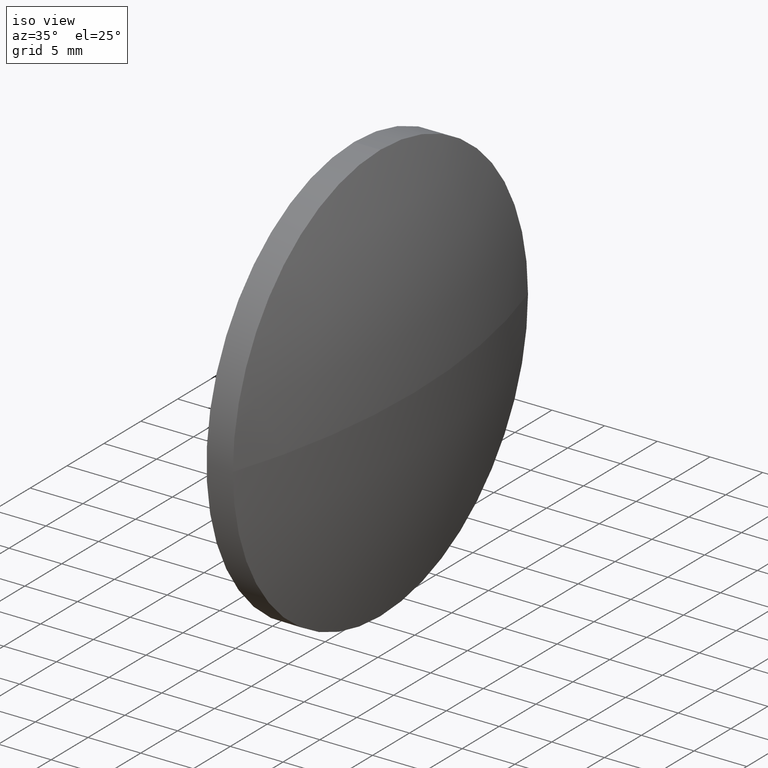
[diagram: clean part render]
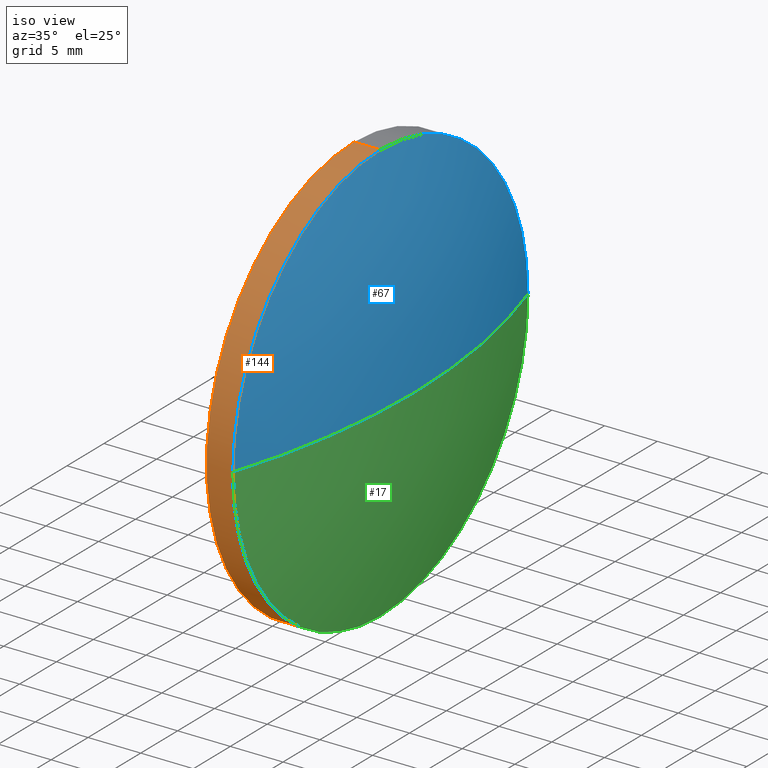
[diagram: same view with three faces highlighted in distinct colors, each labeled with its STEP entity id]
A machine part, iso view with three faces highlighted in distinct colors.
Their STEP definitions:

[orange] entity #144 — the highlighted cylindrical surface (partial cylindrical patch) has radius 20 mm, axis along (-1, -0, -0).
#5 = VECTOR ( 'NONE', #137, 1000.000000000000000 ) ;
#6 = VERTEX_POINT ( 'NONE', #153 ) ;
#9 = DIRECTION ( 'NONE',  ( -1.000000000000000000, -0.0000000000000000000, -0.0000000000000000000 ) ) ;
#15 = ORIENTED_EDGE ( 'NONE', *, *, #185, .F. ) ;
#18 = VECTOR ( 'NONE', #104, 1000.000000000000000 ) ;
#28 = DIRECTION ( 'NONE',  ( 0.0000000000000000000, 0.0000000000000000000, 1.000000000000000000 ) ) ;
#38 = FACE_OUTER_BOUND ( 'NONE', #83, .T. ) ;
#43 = LINE ( 'NONE', #91, #5 ) ;
#46 = EDGE_CURVE ( 'NONE', #169, #164, #158, .T. ) ;
#49 = CARTESIAN_POINT ( 'NONE',  ( 521.8687625904749400, 34.81724702676228800, 19.99999999999999600 ) ) ;
#50 = CIRCLE ( 'NONE', #123, 19.99999999999999600 ) ;
#58 = AXIS2_PLACEMENT_3D ( 'NONE', #108, #182, #170 ) ;
#59 = CARTESIAN_POINT ( 'NONE',  ( 519.3687625904749400, 34.81724702676228800, 0.0000000000000000000 ) ) ;
#65 = CARTESIAN_POINT ( 'NONE',  ( 521.8687625904749400, 34.81724702676228800, 0.0000000000000000000 ) ) ;
#75 = CYLINDRICAL_SURFACE ( 'NONE', #180, 19.99999999999999600 ) ;
#76 = CARTESIAN_POINT ( 'NONE',  ( 515.4038089794889900, 34.81724702676228800, 0.0000000000000000000 ) ) ;
#77 = VERTEX_POINT ( 'NONE', #183 ) ;
#83 = EDGE_LOOP ( 'NONE', ( #121, #135, #162, #141, #15 ) ) ;
#91 = CARTESIAN_POINT ( 'NONE',  ( 515.4038089794889900, 34.81724702676228800, -19.99999999999999600 ) ) ;
#92 = DIRECTION ( 'NONE',  ( -1.000000000000000000, -0.0000000000000000000, -0.0000000000000000000 ) ) ;
#97 = EDGE_CURVE ( 'NONE', #132, #77, #119, .T. ) ;
#104 = DIRECTION ( 'NONE',  ( -1.000000000000000000, -0.0000000000000000000, -0.0000000000000000000 ) ) ;
#108 = CARTESIAN_POINT ( 'NONE',  ( 521.8687625904749400, 34.81724702676228800, 0.0000000000000000000 ) ) ;
#112 = CIRCLE ( 'NONE', #118, 19.99999999999999600 ) ;
#118 = AXIS2_PLACEMENT_3D ( 'NONE', #59, #143, #175 ) ;
#119 = CIRCLE ( 'NONE', #58, 19.99999999999999600 ) ;
#121 = ORIENTED_EDGE ( 'NONE', *, *, #154, .F. ) ;
#123 = AXIS2_PLACEMENT_3D ( 'NONE', #65, #9, #171 ) ;
#128 = EDGE_CURVE ( 'NONE', #77, #169, #50, .T. ) ;
#132 = VERTEX_POINT ( 'NONE', #184 ) ;
#135 = ORIENTED_EDGE ( 'NONE', *, *, #97, .T. ) ;
#137 = DIRECTION ( 'NONE',  ( -1.000000000000000000, -0.0000000000000000000, -0.0000000000000000000 ) ) ;
#141 = ORIENTED_EDGE ( 'NONE', *, *, #46, .T. ) ;
#143 = DIRECTION ( 'NONE',  ( -1.000000000000000000, -0.0000000000000000000, -0.0000000000000000000 ) ) ;
#144 = ADVANCED_FACE ( 'NONE', ( #38 ), #75, .T. ) ;
#148 = CARTESIAN_POINT ( 'NONE',  ( 519.3687625904749400, 34.81724702676228800, 19.99999999999999600 ) ) ;
#153 = CARTESIAN_POINT ( 'NONE',  ( 519.3687625904749400, 34.81724702676228800, -19.99999999999999600 ) ) ;
#154 = EDGE_CURVE ( 'NONE', #132, #6, #43, .T. ) ;
#158 = LINE ( 'NONE', #168, #18 ) ;
#162 = ORIENTED_EDGE ( 'NONE', *, *, #128, .T. ) ;
#164 = VERTEX_POINT ( 'NONE', #148 ) ;
#168 = CARTESIAN_POINT ( 'NONE',  ( 515.4038089794889900, 34.81724702676228800, 19.99999999999999600 ) ) ;
#169 = VERTEX_POINT ( 'NONE', #49 ) ;
#170 = DIRECTION ( 'NONE',  ( 0.0000000000000000000, 0.0000000000000000000, 1.000000000000000000 ) ) ;
#171 = DIRECTION ( 'NONE',  ( 0.0000000000000000000, 0.0000000000000000000, 1.000000000000000000 ) ) ;
#175 = DIRECTION ( 'NONE',  ( 0.0000000000000000000, 0.0000000000000000000, 1.000000000000000000 ) ) ;
#180 = AXIS2_PLACEMENT_3D ( 'NONE', #76, #92, #28 ) ;
#182 = DIRECTION ( 'NONE',  ( -1.000000000000000000, -0.0000000000000000000, -0.0000000000000000000 ) ) ;
#183 = CARTESIAN_POINT ( 'NONE',  ( 521.8687625904749400, 14.81724702676230100, -2.449293598294699800E-015 ) ) ;
#184 = CARTESIAN_POINT ( 'NONE',  ( 521.8687625904749400, 34.81724702676228800, -19.99999999999999600 ) ) ;
#185 = EDGE_CURVE ( 'NONE', #6, #164, #112, .T. ) ;

[blue] entity #67 — the highlighted spherical surface has radius 64.4831 mm.
#3 = VERTEX_POINT ( 'NONE', #56 ) ;
#7 = AXIS2_PLACEMENT_3D ( 'NONE', #27, #105, #63 ) ;
#9 = DIRECTION ( 'NONE',  ( -1.000000000000000000, -0.0000000000000000000, -0.0000000000000000000 ) ) ;
#11 = CARTESIAN_POINT ( 'NONE',  ( 460.5656808294688700, 34.81724702676224600, 0.0000000000000000000 ) ) ;
#27 = CARTESIAN_POINT ( 'NONE',  ( 460.5656808294688700, 34.81724702676224600, 0.0000000000000000000 ) ) ;
#34 = DIRECTION ( 'NONE',  ( -0.0000000000000000000, 0.0000000000000000000, 1.000000000000000000 ) ) ;
#35 = AXIS2_PLACEMENT_3D ( 'NONE', #36, #179, #78 ) ;
#36 = CARTESIAN_POINT ( 'NONE',  ( 521.8687625904749400, 34.81724702676228800, 0.0000000000000000000 ) ) ;
#49 = CARTESIAN_POINT ( 'NONE',  ( 521.8687625904749400, 34.81724702676228800, 19.99999999999999600 ) ) ;
#50 = CIRCLE ( 'NONE', #123, 19.99999999999999600 ) ;
#54 = EDGE_LOOP ( 'NONE', ( #159, #96, #117, #160 ) ) ;
#56 = CARTESIAN_POINT ( 'NONE',  ( 521.8687625904749400, 54.81724702676223900, 0.0000000000000000000 ) ) ;
#57 = CIRCLE ( 'NONE', #61, 64.48308176100611900 ) ;
#61 = AXIS2_PLACEMENT_3D ( 'NONE', #146, #90, #147 ) ;
#63 = DIRECTION ( 'NONE',  ( 0.0000000000000000000, 1.000000000000000000, 0.0000000000000000000 ) ) ;
#64 = AXIS2_PLACEMENT_3D ( 'NONE', #11, #34, #150 ) ;
#65 = CARTESIAN_POINT ( 'NONE',  ( 521.8687625904749400, 34.81724702676228800, 0.0000000000000000000 ) ) ;
#67 = ADVANCED_FACE ( 'NONE', ( #126 ), #161, .T. ) ;
#74 = EDGE_CURVE ( 'NONE', #169, #3, #86, .T. ) ;
#77 = VERTEX_POINT ( 'NONE', #183 ) ;
#78 = DIRECTION ( 'NONE',  ( 0.0000000000000000000, 0.0000000000000000000, 1.000000000000000000 ) ) ;
#82 = CIRCLE ( 'NONE', #64, 64.48308176100609000 ) ;
#86 = CIRCLE ( 'NONE', #35, 19.99999999999999600 ) ;
#90 = DIRECTION ( 'NONE',  ( 0.0000000000000000000, 1.224646799147353200E-016, -1.000000000000000000 ) ) ;
#93 = VERTEX_POINT ( 'NONE', #155 ) ;
#96 = ORIENTED_EDGE ( 'NONE', *, *, #110, .T. ) ;
#105 = DIRECTION ( 'NONE',  ( -0.0000000000000000000, 0.0000000000000000000, -1.000000000000000000 ) ) ;
#110 = EDGE_CURVE ( 'NONE', #93, #3, #82, .T. ) ;
#117 = ORIENTED_EDGE ( 'NONE', *, *, #74, .F. ) ;
#123 = AXIS2_PLACEMENT_3D ( 'NONE', #65, #9, #171 ) ;
#126 = FACE_OUTER_BOUND ( 'NONE', #54, .T. ) ;
#128 = EDGE_CURVE ( 'NONE', #77, #169, #50, .T. ) ;
#146 = CARTESIAN_POINT ( 'NONE',  ( 460.5656808294688700, 34.81724702676224600, 0.0000000000000000000 ) ) ;
#147 = DIRECTION ( 'NONE',  ( 0.0000000000000000000, 1.000000000000000000, 1.224646799147353200E-016 ) ) ;
#150 = DIRECTION ( 'NONE',  ( 1.000000000000000000, 0.0000000000000000000, 0.0000000000000000000 ) ) ;
#155 = CARTESIAN_POINT ( 'NONE',  ( 525.0487625904748900, 34.81724702676225300, 0.0000000000000000000 ) ) ;
#159 = ORIENTED_EDGE ( 'NONE', *, *, #174, .F. ) ;
#160 = ORIENTED_EDGE ( 'NONE', *, *, #128, .F. ) ;
#161 = SPHERICAL_SURFACE ( 'NONE', #7, 64.48308176100611900 ) ;
#169 = VERTEX_POINT ( 'NONE', #49 ) ;
#171 = DIRECTION ( 'NONE',  ( 0.0000000000000000000, 0.0000000000000000000, 1.000000000000000000 ) ) ;
#174 = EDGE_CURVE ( 'NONE', #93, #77, #57, .T. ) ;
#179 = DIRECTION ( 'NONE',  ( -1.000000000000000000, -0.0000000000000000000, -0.0000000000000000000 ) ) ;
#183 = CARTESIAN_POINT ( 'NONE',  ( 521.8687625904749400, 14.81724702676230100, -2.449293598294699800E-015 ) ) ;

[green] entity #17 — the highlighted spherical surface has radius 64.4831 mm.
#3 = VERTEX_POINT ( 'NONE', #56 ) ;
#11 = CARTESIAN_POINT ( 'NONE',  ( 460.5656808294688700, 34.81724702676224600, 0.0000000000000000000 ) ) ;
#17 = ADVANCED_FACE ( 'NONE', ( #23 ), #172, .T. ) ;
#22 = DIRECTION ( 'NONE',  ( -0.0000000000000000000, 0.0000000000000000000, -1.000000000000000000 ) ) ;
#23 = FACE_OUTER_BOUND ( 'NONE', #152, .T. ) ;
#34 = DIRECTION ( 'NONE',  ( -0.0000000000000000000, 0.0000000000000000000, 1.000000000000000000 ) ) ;
#39 = ORIENTED_EDGE ( 'NONE', *, *, #97, .F. ) ;
#51 = EDGE_CURVE ( 'NONE', #3, #132, #165, .T. ) ;
#53 = CARTESIAN_POINT ( 'NONE',  ( 521.8687625904749400, 34.81724702676228800, 0.0000000000000000000 ) ) ;
#56 = CARTESIAN_POINT ( 'NONE',  ( 521.8687625904749400, 54.81724702676223900, 0.0000000000000000000 ) ) ;
#57 = CIRCLE ( 'NONE', #61, 64.48308176100611900 ) ;
#58 = AXIS2_PLACEMENT_3D ( 'NONE', #108, #182, #170 ) ;
#61 = AXIS2_PLACEMENT_3D ( 'NONE', #146, #90, #147 ) ;
#64 = AXIS2_PLACEMENT_3D ( 'NONE', #11, #34, #150 ) ;
#77 = VERTEX_POINT ( 'NONE', #183 ) ;
#81 = DIRECTION ( 'NONE',  ( 0.0000000000000000000, 0.0000000000000000000, 1.000000000000000000 ) ) ;
#82 = CIRCLE ( 'NONE', #64, 64.48308176100609000 ) ;
#90 = DIRECTION ( 'NONE',  ( 0.0000000000000000000, 1.224646799147353200E-016, -1.000000000000000000 ) ) ;
#93 = VERTEX_POINT ( 'NONE', #155 ) ;
#97 = EDGE_CURVE ( 'NONE', #132, #77, #119, .T. ) ;
#101 = AXIS2_PLACEMENT_3D ( 'NONE', #53, #124, #81 ) ;
#107 = CARTESIAN_POINT ( 'NONE',  ( 460.5656808294688700, 34.81724702676224600, 0.0000000000000000000 ) ) ;
#108 = CARTESIAN_POINT ( 'NONE',  ( 521.8687625904749400, 34.81724702676228800, 0.0000000000000000000 ) ) ;
#110 = EDGE_CURVE ( 'NONE', #93, #3, #82, .T. ) ;
#116 = ORIENTED_EDGE ( 'NONE', *, *, #110, .F. ) ;
#119 = CIRCLE ( 'NONE', #58, 19.99999999999999600 ) ;
#124 = DIRECTION ( 'NONE',  ( -1.000000000000000000, -0.0000000000000000000, -0.0000000000000000000 ) ) ;
#127 = ORIENTED_EDGE ( 'NONE', *, *, #174, .T. ) ;
#129 = ORIENTED_EDGE ( 'NONE', *, *, #51, .F. ) ;
#132 = VERTEX_POINT ( 'NONE', #184 ) ;
#142 = AXIS2_PLACEMENT_3D ( 'NONE', #107, #22, #156 ) ;
#146 = CARTESIAN_POINT ( 'NONE',  ( 460.5656808294688700, 34.81724702676224600, 0.0000000000000000000 ) ) ;
#147 = DIRECTION ( 'NONE',  ( 0.0000000000000000000, 1.000000000000000000, 1.224646799147353200E-016 ) ) ;
#150 = DIRECTION ( 'NONE',  ( 1.000000000000000000, 0.0000000000000000000, 0.0000000000000000000 ) ) ;
#152 = EDGE_LOOP ( 'NONE', ( #116, #127, #39, #129 ) ) ;
#155 = CARTESIAN_POINT ( 'NONE',  ( 525.0487625904748900, 34.81724702676225300, 0.0000000000000000000 ) ) ;
#156 = DIRECTION ( 'NONE',  ( 0.0000000000000000000, 1.000000000000000000, 0.0000000000000000000 ) ) ;
#165 = CIRCLE ( 'NONE', #101, 19.99999999999999600 ) ;
#170 = DIRECTION ( 'NONE',  ( 0.0000000000000000000, 0.0000000000000000000, 1.000000000000000000 ) ) ;
#172 = SPHERICAL_SURFACE ( 'NONE', #142, 64.48308176100611900 ) ;
#174 = EDGE_CURVE ( 'NONE', #93, #77, #57, .T. ) ;
#182 = DIRECTION ( 'NONE',  ( -1.000000000000000000, -0.0000000000000000000, -0.0000000000000000000 ) ) ;
#183 = CARTESIAN_POINT ( 'NONE',  ( 521.8687625904749400, 14.81724702676230100, -2.449293598294699800E-015 ) ) ;
#184 = CARTESIAN_POINT ( 'NONE',  ( 521.8687625904749400, 34.81724702676228800, -19.99999999999999600 ) ) ;